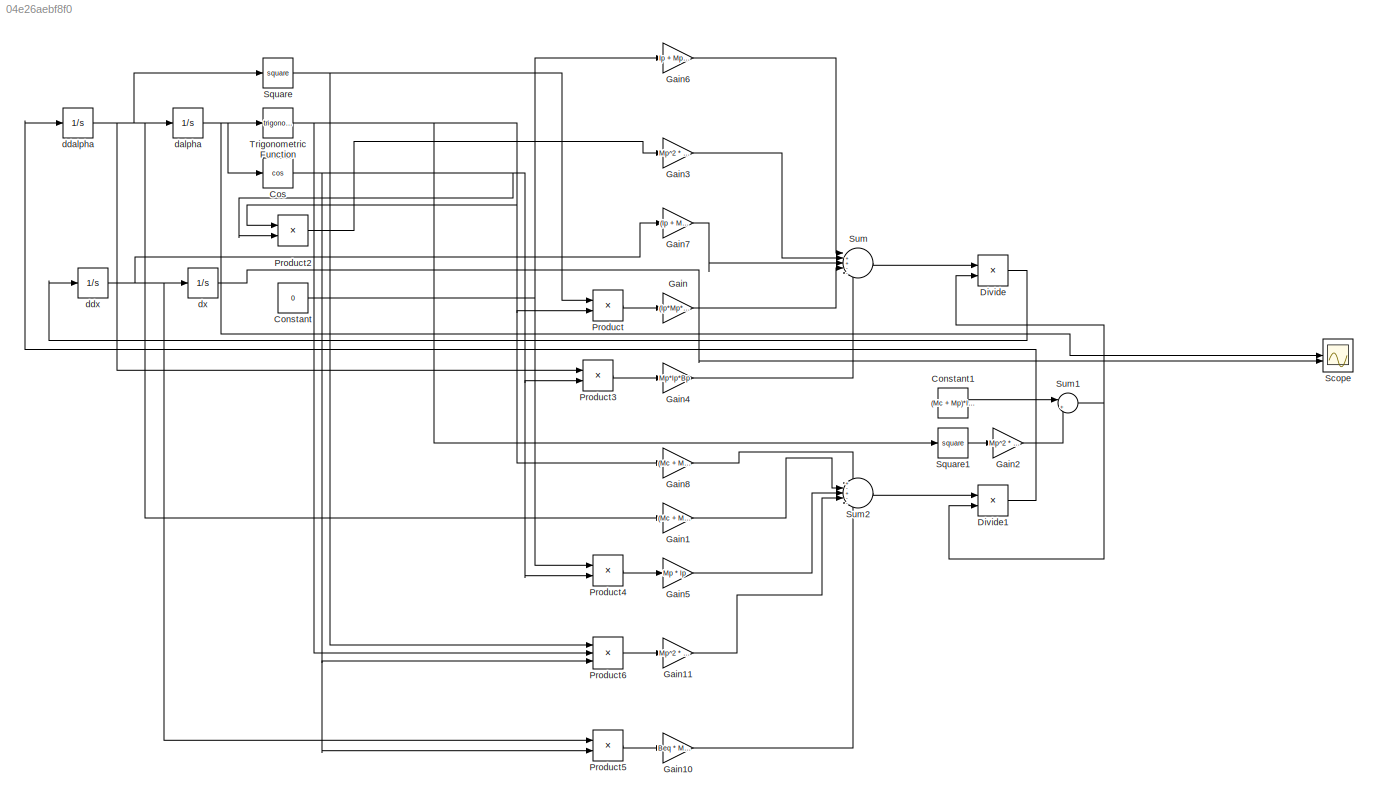
MODEL slx_04e26aebf8f0
KIND model
CONFIG AbsTol = auto
CONFIG EnableMultiTasking = off
CONFIG FixedStep = auto
CONFIG MaxStep = auto
CONFIG MinStep = auto
CONFIG RelTol = 1e-3
CONFIG SampleTimeConstraint = Unconstrained
CONFIG SolverName = ode45
CONFIG StartTime = 0.0
CONFIG StopTime = 30.0
BLOCK [Constant] Constant
  Value = 0
BLOCK [Constant] Constant1
  Value = (Mc + Mp)*Ip + Mc*Mp*lp^2
BLOCK [Trigonometry] Cos
  Operator = cos
BLOCK [Product] Divide
  Inputs = */
BLOCK [Product] Divide1
  Inputs = */
BLOCK [Gain] Gain
  Gain = (Ip*Mp*lp + Mp^2*lp^3)
BLOCK [Gain] Gain1
  Gain = (Mc + Mp) * Bp
BLOCK [Gain] Gain10
  Gain = Beq * Mp * lp
BLOCK [Gain] Gain11
  Gain = Mp^2 * lp^2
BLOCK [Gain] Gain2
  Gain = Mp^2 * lp^2
BLOCK [Gain] Gain3
  Gain = Mp^2 * lp^2 * g
BLOCK [Gain] Gain4
  Gain = Mp*lp*Bp
BLOCK [Gain] Gain5
  Gain = Mp * lp
BLOCK [Gain] Gain6
  Gain = Ip + Mp*lp^2
BLOCK [Gain] Gain7
  Gain = (Ip + Mp*lp^2) * Beq
BLOCK [Gain] Gain8
  Gain = (Mc + Mp) * Mp * g * lp
BLOCK [Product] Product
BLOCK [Product] Product2
BLOCK [Product] Product3
BLOCK [Product] Product4
BLOCK [Product] Product5
BLOCK [Product] Product6
  Inputs = 3
BLOCK [Scope] Scope
  ActiveDisplayYMaximum = 16.767543246003989
  ActiveDisplayYMinimum = -7.9868900411222956
  ContainerLayout = {"WindowBounds":[498,1430,1037,698]}
  Floating = off
  GraphicalSettings = {"AxesScalingProperties":{"AlignXAxis":"Center","AlignYAxis":"Center","AutoScaleXAxisLimits":false,"AxesScaling":"Manual","AxesScalingNumUpdates":10,"ExpandOnly":true,"ScaleAxesLimitsAtStop":false,"XAxisDataRange":100,"YAxisDataRange":80},"DisplayProperties":{"ColorOrder":["auto","auto","auto","auto","auto","auto","auto","auto","auto","auto","auto","auto","auto","auto","auto","auto","auto","auto",...<+2109ch>
  MultipleDisplayCache = [{"MaxYLimMag":5.8879291153760667,"MaxYLimReal":16.767543246003989,"MinYLimMag":0,"MinYLimReal":-7.9868900411222956,"PlotAsMagnitudePhase":false,"ShowGrid":true,"ShowLegend":false,"Title":"%<SignalLabel>","YLabel":""}]
  NumInputPorts = 2
  Visible = on
  WasSavedAsWebScope = on
BLOCK [Math] Square
  Operator = square
BLOCK [Math] Square1
  Operator = square
BLOCK [Sum] Sum
  Inputs = |++---
BLOCK [Sum] Sum1
  Inputs = |++
BLOCK [Sum] Sum2
  Inputs = +-+--
BLOCK [Trigonometry] Trigonometric Function
BLOCK [Integrator] dalpha
  InitialCondition = 1*pi/180
BLOCK [Integrator] ddalpha
BLOCK [Integrator] ddx
BLOCK [Integrator] dx
LINE Constant1:1 -> Sum1:1
NET Constant:1 -> Gain6:1, Product4:1
NET Cos:1 -> Product2:2, Product3:2, Product4:2, Product5:2, Product6:3
LINE Divide1:1 -> ddalpha:1
LINE Divide:1 -> ddx:1
LINE Gain10:1 -> Sum2:5
LINE Gain11:1 -> Sum2:4
LINE Gain1:1 -> Sum2:2
LINE Gain2:1 -> Sum1:2
LINE Gain3:1 -> Sum:2
LINE Gain4:1 -> Sum:5
LINE Gain5:1 -> Sum2:3
LINE Gain6:1 -> Sum:1
LINE Gain7:1 -> Sum:3
LINE Gain8:1 -> Sum2:1
LINE Gain:1 -> Sum:4
LINE Product2:1 -> Gain3:1
LINE Product3:1 -> Gain4:1
LINE Product4:1 -> Gain5:1
LINE Product5:1 -> Gain10:1
LINE Product6:1 -> Gain11:1
LINE Product:1 -> Gain:1
LINE Square1:1 -> Gain2:1
NET Square:1 -> Product6:1, Product:1
NET Sum1:1 -> Divide1:2, Divide:2
LINE Sum2:1 -> Divide1:1
LINE Sum:1 -> Divide:1
NET Trigonometric Function:1 -> Gain8:1, Product2:1, Product6:2, Product:2, Square1:1
NET dalpha:1 -> Cos:1, Scope:1, Trigonometric Function:1
NET ddalpha:1 -> Gain1:1, Product3:1, Square:1, dalpha:1
NET ddx:1 -> Gain7:1, Product5:1, dx:1
LINE dx:1 -> Scope:2
note: NET lines group one-source signal fan-out (src -> all destinations, sorted); 1:1 wires keep LINE
